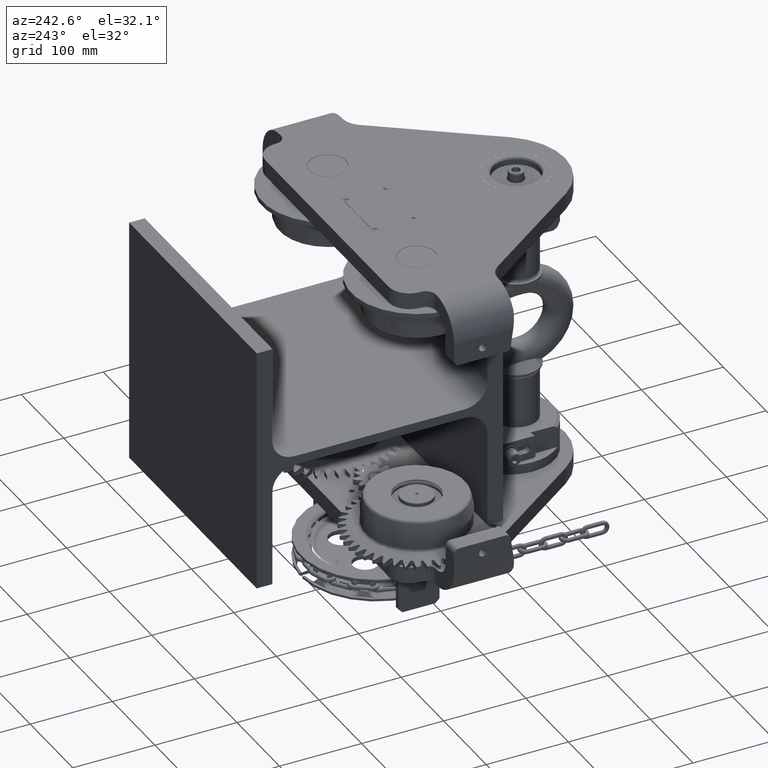
[diagram: clean part render]
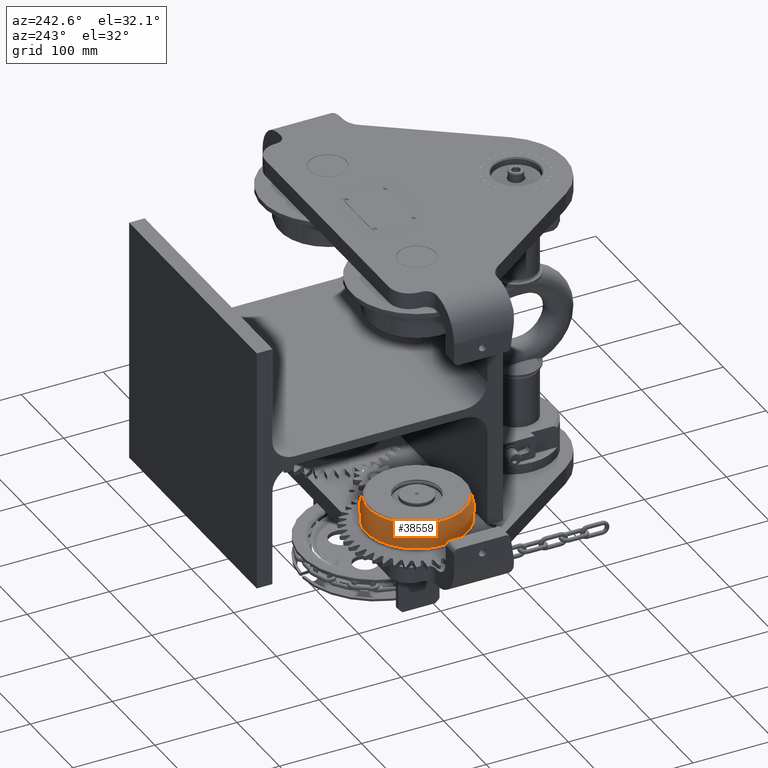
[diagram: same view with one face highlighted and labeled with its STEP entity id]
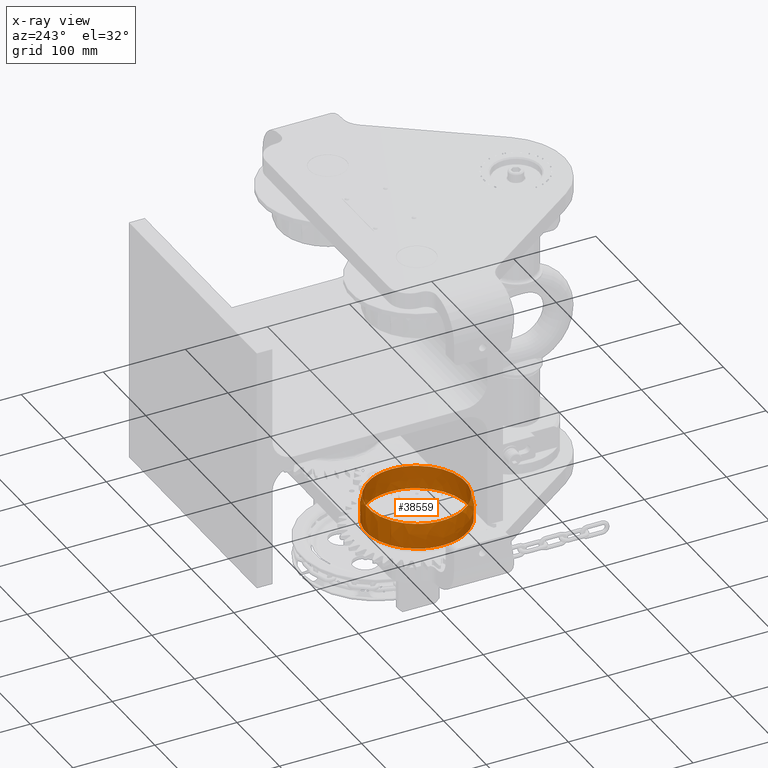
[diagram: x-ray of the same camera — body ghosted, the highlighted face saturated]
A machine part, auxiliary view. The second image highlights one B-rep face of the part: STEP entity #38559.
The next image is the same camera in x-ray: the body ghosted, the highlighted face saturated — about 0% of this face is hidden behind the body in this view.
In plain terms, the highlighted spherical surface has radius 62.5 mm.
Its self-contained STEP definition (entity closure, byte-faithful):
#115 = AXIS2_PLACEMENT_3D ( 'NONE', #60045, #50334, #9730 ) ;
#749 = EDGE_LOOP ( 'NONE', ( #47990 ) ) ;
#1706 = AXIS2_PLACEMENT_3D ( 'NONE', #29594, #35255, #8781 ) ;
#2067 = EDGE_LOOP ( 'NONE', ( #59574 ) ) ;
#2614 = VERTEX_POINT ( 'NONE', #59705 ) ;
#4927 = SPHERICAL_SURFACE ( 'NONE', #57466, 62.50000000000000000 ) ;
#8781 = DIRECTION ( 'NONE',  ( -1.000000000000000000, 7.029365182646002500E-016, 0.0000000000000000000 ) ) ;
#9730 = DIRECTION ( 'NONE',  ( -1.000000000000000000, 6.751609088483730700E-016, 0.0000000000000000000 ) ) ;
#15223 = CARTESIAN_POINT ( 'NONE',  ( -163.7277714155855800, -68.49999999999982900, -119.0420168067227800 ) ) ;
#17811 = FACE_OUTER_BOUND ( 'NONE', #749, .T. ) ;
#18459 = CARTESIAN_POINT ( 'NONE',  ( -104.4999999999999700, -68.49999999999985800, -139.0000000000000900 ) ) ;
#29594 = CARTESIAN_POINT ( 'NONE',  ( -104.4999999999999700, -68.49999999999987200, -119.0420168067227800 ) ) ;
#30459 = CIRCLE ( 'NONE', #1706, 59.22777141558562200 ) ;
#33293 = DIRECTION ( 'NONE',  ( 1.000000000000000000, -6.661338147750939200E-016, 4.535348335754326600E-017 ) ) ;
#35255 = DIRECTION ( 'NONE',  ( 4.535348335754367300E-017, 6.073464467589028000E-016, -1.000000000000000000 ) ) ;
#35455 = CIRCLE ( 'NONE', #115, 61.66435715962541100 ) ;
#38559 = ADVANCED_FACE ( 'NONE', ( #17811, #48323 ), #4927, .T. ) ;
#38786 = EDGE_CURVE ( 'NONE', #2614, #2614, #35455, .T. ) ;
#43817 = DIRECTION ( 'NONE',  ( 6.661338147750939200E-016, 1.000000000000000000, 4.440892098500626200E-016 ) ) ;
#45039 = VERTEX_POINT ( 'NONE', #15223 ) ;
#47990 = ORIENTED_EDGE ( 'NONE', *, *, #38786, .F. ) ;
#48323 = FACE_OUTER_BOUND ( 'NONE', #2067, .T. ) ;
#50334 = DIRECTION ( 'NONE',  ( 4.535348335754367300E-017, 6.073464467589028000E-016, -1.000000000000000000 ) ) ;
#57466 = AXIS2_PLACEMENT_3D ( 'NONE', #18459, #33293, #43817 ) ;
#59574 = ORIENTED_EDGE ( 'NONE', *, *, #64541, .T. ) ;
#59705 = CARTESIAN_POINT ( 'NONE',  ( -166.1643571596253800, -68.49999999999988600, -149.1861207576857900 ) ) ;
#60045 = CARTESIAN_POINT ( 'NONE',  ( -104.4999999999999700, -68.49999999999992900, -149.1861207576857900 ) ) ;
#64541 = EDGE_CURVE ( 'NONE', #45039, #45039, #30459, .T. ) ;